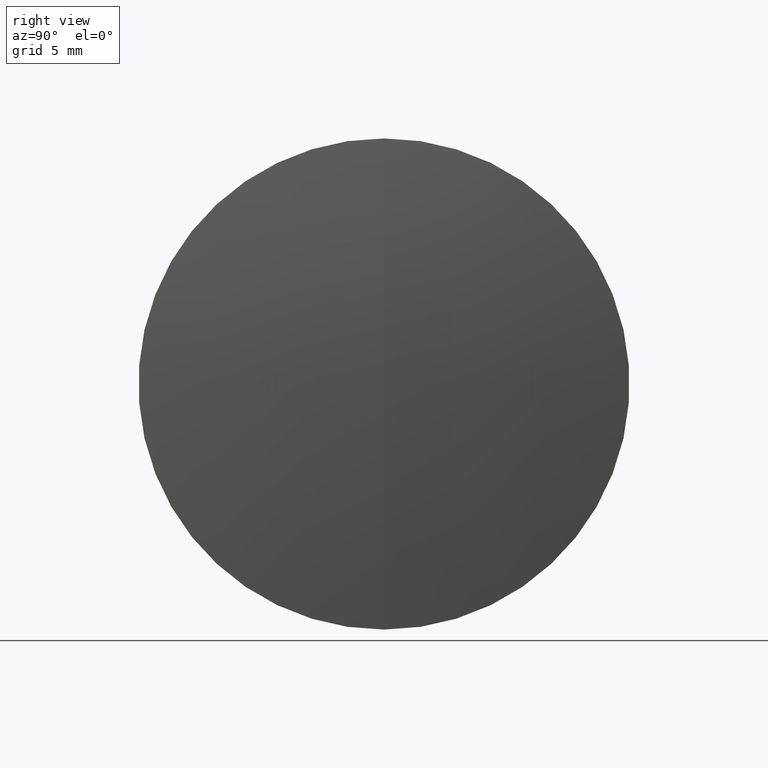
[diagram: clean part render]
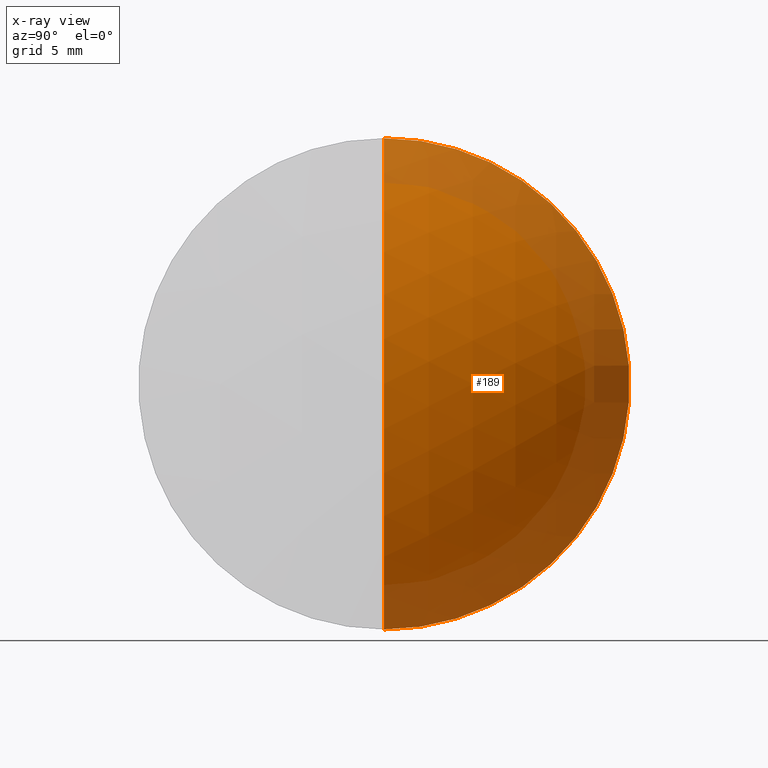
[diagram: x-ray — body ghosted, one internal face saturated and labeled with its STEP entity id]
A machine part, right view, then the same camera in x-ray: the body is ghosted and one INTERNAL B-rep face — a face not visible from any outside direction — is saturated and labeled: STEP entity #189.
In plain terms, the highlighted spherical surface has radius 18.62 mm.
Its self-contained STEP definition (entity closure, byte-faithful):
#32 = DIRECTION ( 'NONE',  ( 0.0000000000000000000, -1.000000000000000000, 0.0000000000000000000 ) ) ;
#35 = ORIENTED_EDGE ( 'NONE', *, *, #229, .F. ) ;
#42 = VERTEX_POINT ( 'NONE', #95 ) ;
#58 = ORIENTED_EDGE ( 'NONE', *, *, #73, .T. ) ;
#73 = EDGE_CURVE ( 'NONE', #146, #190, #90, .T. ) ;
#85 = FACE_OUTER_BOUND ( 'NONE', #124, .T. ) ;
#90 = CIRCLE ( 'NONE', #314, 18.62000000000000800 ) ;
#95 = CARTESIAN_POINT ( 'NONE',  ( 278.0956821889693100, 0.0000000000000000000, 12.70000000000000600 ) ) ;
#103 = AXIS2_PLACEMENT_3D ( 'NONE', #270, #205, #116 ) ;
#116 = DIRECTION ( 'NONE',  ( 0.0000000000000000000, 0.0000000000000000000, 1.000000000000000000 ) ) ;
#124 = EDGE_LOOP ( 'NONE', ( #35, #58, #271 ) ) ;
#131 = EDGE_CURVE ( 'NONE', #42, #190, #201, .T. ) ;
#146 = VERTEX_POINT ( 'NONE', #281 ) ;
#168 = CARTESIAN_POINT ( 'NONE',  ( 264.4789865545651500, 0.0000000000000000000, 6.938893903907228400E-015 ) ) ;
#177 = CARTESIAN_POINT ( 'NONE',  ( 278.0956821889693100, 1.555301434917139200E-015, -12.70000000000000600 ) ) ;
#189 = ADVANCED_FACE ( 'NONE', ( #85 ), #291, .T. ) ;
#190 = VERTEX_POINT ( 'NONE', #177 ) ;
#195 = DIRECTION ( 'NONE',  ( 0.0000000000000000000, 0.0000000000000000000, -1.000000000000000000 ) ) ;
#201 = CIRCLE ( 'NONE', #103, 12.70000000000000600 ) ;
#203 = AXIS2_PLACEMENT_3D ( 'NONE', #296, #223, #257 ) ;
#204 = CIRCLE ( 'NONE', #206, 18.62000000000000800 ) ;
#205 = DIRECTION ( 'NONE',  ( -1.000000000000000000, -0.0000000000000000000, -0.0000000000000000000 ) ) ;
#206 = AXIS2_PLACEMENT_3D ( 'NONE', #168, #32, #195 ) ;
#223 = DIRECTION ( 'NONE',  ( 0.0000000000000000000, 1.000000000000000000, 0.0000000000000000000 ) ) ;
#229 = EDGE_CURVE ( 'NONE', #146, #42, #204, .T. ) ;
#257 = DIRECTION ( 'NONE',  ( 0.0000000000000000000, 0.0000000000000000000, 1.000000000000000000 ) ) ;
#270 = CARTESIAN_POINT ( 'NONE',  ( 278.0956821889693100, 0.0000000000000000000, 0.0000000000000000000 ) ) ;
#271 = ORIENTED_EDGE ( 'NONE', *, *, #131, .F. ) ;
#281 = CARTESIAN_POINT ( 'NONE',  ( 283.0989865545651600, 0.0000000000000000000, 8.079040073913415500E-015 ) ) ;
#291 = SPHERICAL_SURFACE ( 'NONE', #203, 18.62000000000000800 ) ;
#296 = CARTESIAN_POINT ( 'NONE',  ( 264.4789865545651500, 0.0000000000000000000, 6.938893903907228400E-015 ) ) ;
#307 = CARTESIAN_POINT ( 'NONE',  ( 264.4789865545651500, 0.0000000000000000000, 6.938893903907228400E-015 ) ) ;
#314 = AXIS2_PLACEMENT_3D ( 'NONE', #307, #337, #319 ) ;
#319 = DIRECTION ( 'NONE',  ( 0.0000000000000000000, -1.224646799147353200E-016, 1.000000000000000000 ) ) ;
#337 = DIRECTION ( 'NONE',  ( -0.0000000000000000000, 1.000000000000000000, 1.224646799147353200E-016 ) ) ;